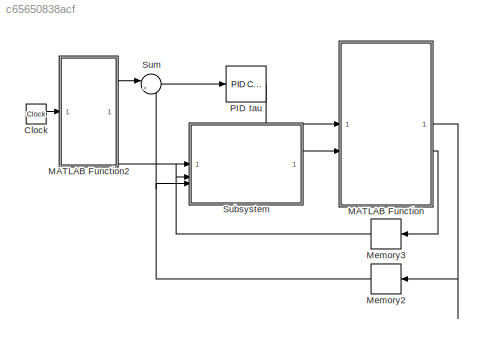
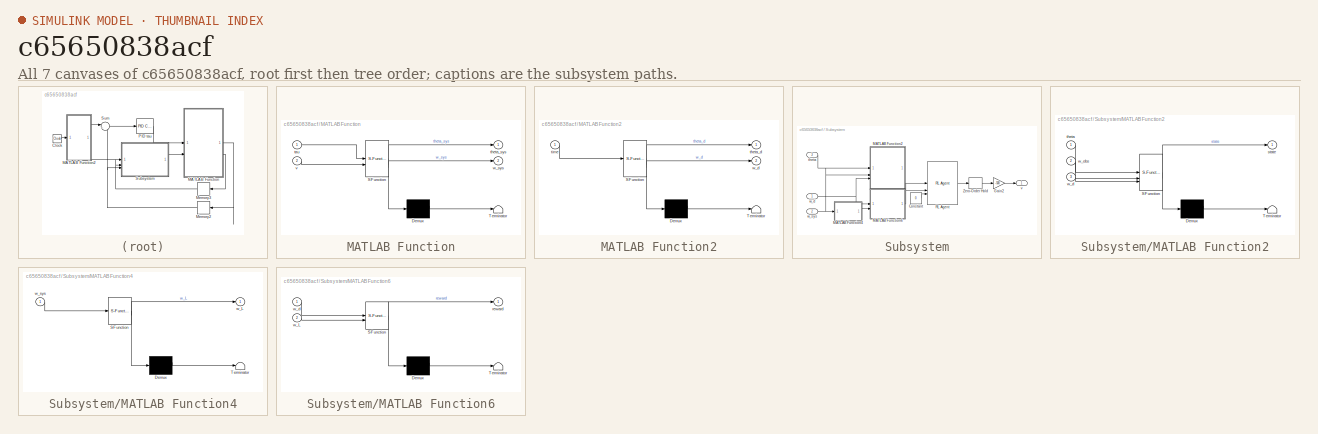
[diagram: thumbnail index - all 7 canvases of the model, root first then tree order]
MODEL slx_c65650838acf
KIND model
CONFIG AbsTol = auto
CONFIG EnableMultiTasking = off
CONFIG FixedStep = 5e-5
CONFIG MaxStep = auto
CONFIG MinStep = auto
CONFIG RelTol = 1e-3
CONFIG SampleTimeConstraint = Unconstrained
CONFIG SolverName = FixedStepAuto
CONFIG StartTime = 0.0
CONFIG StopTime = 10.0
BLOCK [Clock] Clock
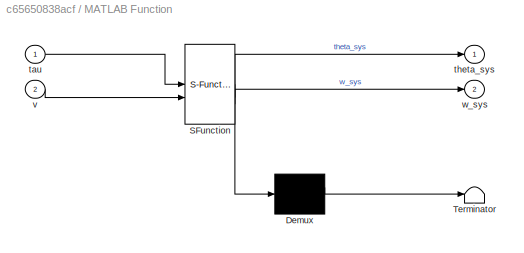
BLOCK [SubSystem] MATLAB Function
  ErrorFcn = Stateflow.Translate.translate
  PermitHierarchicalResolution = ExplicitOnly
  SFBlockType = MATLAB Function
  TreatAsAtomicUnit = on
BLOCK [Demux] MATLAB Function/ Demux 
  Outputs = 1
BLOCK [S-Function] MATLAB Function/ SFunction 
  EnableBusSupport = on
  FunctionName = sf_sfun
  PortCounts = [2 3]
  SFcnIsStateOwnerBlock = off
  SFunctionDeploymentMode = off
  Tag = Stateflow S-Function 2
BLOCK [Terminator] MATLAB Function/ Terminator 
BLOCK [Inport] MATLAB Function/tau
BLOCK [Outport] MATLAB Function/theta_sys
  VectorParamsAs1DForOutWhenUnconnected = off
BLOCK [Inport] MATLAB Function/v
  Port = 2
BLOCK [Outport] MATLAB Function/w_sys
  Port = 2
  VectorParamsAs1DForOutWhenUnconnected = off
BLOCK [SubSystem] MATLAB Function2
  ErrorFcn = Stateflow.Translate.translate
  PermitHierarchicalResolution = ExplicitOnly
  SFBlockType = MATLAB Function
  TreatAsAtomicUnit = on
BLOCK [Demux] MATLAB Function2/ Demux 
  Outputs = 1
BLOCK [S-Function] MATLAB Function2/ SFunction 
  EnableBusSupport = on
  FunctionName = sf_sfun
  PortCounts = [1 3]
  SFcnIsStateOwnerBlock = off
  SFunctionDeploymentMode = off
  Tag = Stateflow S-Function 3
BLOCK [Terminator] MATLAB Function2/ Terminator 
BLOCK [Outport] MATLAB Function2/theta_d
  VectorParamsAs1DForOutWhenUnconnected = off
BLOCK [Inport] MATLAB Function2/time
BLOCK [Outport] MATLAB Function2/w_d
  Port = 2
  VectorParamsAs1DForOutWhenUnconnected = off
BLOCK [Memory] Memory2
BLOCK [Memory] Memory3
BLOCK [Reference] PID tau  REF=slpidlib/PID Controller
  SourceBlock = slpidlib/PID Controller
  SourceType = PID 1dof
BLOCK [SubSystem] Subsystem
BLOCK [Constant] Subsystem/Constant
  Value = 0
BLOCK [Gain] Subsystem/Gain2
  Gain = -500
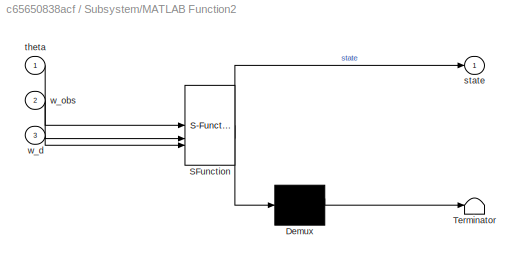
BLOCK [SubSystem] Subsystem/MATLAB Function2
  ErrorFcn = Stateflow.Translate.translate
  PermitHierarchicalResolution = ExplicitOnly
  SFBlockType = MATLAB Function
  TreatAsAtomicUnit = on
BLOCK [Demux] Subsystem/MATLAB Function2/ Demux 
  Outputs = 1
BLOCK [S-Function] Subsystem/MATLAB Function2/ SFunction 
  EnableBusSupport = on
  FunctionName = sf_sfun
  PortCounts = [3 2]
  SFcnIsStateOwnerBlock = off
  SFunctionDeploymentMode = off
  Tag = Stateflow S-Function 9
BLOCK [Terminator] Subsystem/MATLAB Function2/ Terminator 
BLOCK [Outport] Subsystem/MATLAB Function2/state
  VectorParamsAs1DForOutWhenUnconnected = off
BLOCK [Inport] Subsystem/MATLAB Function2/theta
BLOCK [Inport] Subsystem/MATLAB Function2/w_d
  Port = 3
BLOCK [Inport] Subsystem/MATLAB Function2/w_obs
  Port = 2
BLOCK [SubSystem] Subsystem/MATLAB Function4
  ErrorFcn = Stateflow.Translate.translate
  PermitHierarchicalResolution = ExplicitOnly
  SFBlockType = MATLAB Function
  TreatAsAtomicUnit = on
BLOCK [Demux] Subsystem/MATLAB Function4/ Demux 
  Outputs = 1
BLOCK [S-Function] Subsystem/MATLAB Function4/ SFunction 
  EnableBusSupport = on
  FunctionName = sf_sfun
  PortCounts = [1 2]
  SFcnIsStateOwnerBlock = off
  SFunctionDeploymentMode = off
  Tag = Stateflow S-Function 11
BLOCK [Terminator] Subsystem/MATLAB Function4/ Terminator 
BLOCK [Outport] Subsystem/MATLAB Function4/w_L
  VectorParamsAs1DForOutWhenUnconnected = off
BLOCK [Inport] Subsystem/MATLAB Function4/w_sys
BLOCK [SubSystem] Subsystem/MATLAB Function6
  ErrorFcn = Stateflow.Translate.translate
  PermitHierarchicalResolution = ExplicitOnly
  SFBlockType = MATLAB Function
  TreatAsAtomicUnit = on
BLOCK [Demux] Subsystem/MATLAB Function6/ Demux 
  Outputs = 1
BLOCK [S-Function] Subsystem/MATLAB Function6/ SFunction 
  EnableBusSupport = on
  FunctionName = sf_sfun
  PortCounts = [2 2]
  SFcnIsStateOwnerBlock = off
  SFunctionDeploymentMode = off
  Tag = Stateflow S-Function 7
BLOCK [Terminator] Subsystem/MATLAB Function6/ Terminator 
BLOCK [Outport] Subsystem/MATLAB Function6/reward
  VectorParamsAs1DForOutWhenUnconnected = off
BLOCK [Inport] Subsystem/MATLAB Function6/w_L
  Port = 2
BLOCK [Inport] Subsystem/MATLAB Function6/w_d
BLOCK [Reference] Subsystem/RL Agent  REF=rllib/RL Agent
  SourceBlock = rllib/RL Agent
  SourceType = RL Agent
BLOCK [ZeroOrderHold] Subsystem/Zero-Order Hold
  SampleTime = 20e-3
BLOCK [Inport] Subsystem/theta
  Port = 3
BLOCK [Outport] Subsystem/v
  VectorParamsAs1DForOutWhenUnconnected = off
BLOCK [Inport] Subsystem/w_d
BLOCK [Inport] Subsystem/w_sys
  Port = 2
BLOCK [Sum] Sum
  Inputs = |+-
LINE Clock:1 -> MATLAB Function2:1
LINE MATLAB Function2:1 -> Sum:1
LINE MATLAB Function2:2 -> Subsystem:1
LINE MATLAB Function:1 -> Memory2:1
LINE MATLAB Function:2 -> Memory3:1
NET Memory2:1 -> Subsystem:3, Sum:2
LINE Memory3:1 -> Subsystem:2
LINE PID tau:1 -> MATLAB Function:1
LINE Subsystem/Constant:1 -> Subsystem/RL Agent:3
LINE Subsystem/Gain2:1 -> Subsystem/v:1
LINE Subsystem/MATLAB Function2:1 -> Subsystem/RL Agent:1
LINE Subsystem/MATLAB Function4:1 -> Subsystem/MATLAB Function6:2
LINE Subsystem/MATLAB Function6:1 -> Subsystem/RL Agent:2
LINE Subsystem/RL Agent:1 -> Subsystem/Zero-Order Hold:1
LINE Subsystem/Zero-Order Hold:1 -> Subsystem/Gain2:1
LINE Subsystem/theta:1 -> Subsystem/MATLAB Function2:1
NET Subsystem/w_d:1 -> Subsystem/MATLAB Function2:3, Subsystem/MATLAB Function6:1
NET Subsystem/w_sys:1 -> Subsystem/MATLAB Function2:2, Subsystem/MATLAB Function4:1
LINE Subsystem:1 -> MATLAB Function:2
LINE Sum:1 -> PID tau:1
note: NET lines group one-source signal fan-out (src -> all destinations, sorted); 1:1 wires keep LINE
CHART MATLAB Function states=1 transitions=1
  STATE_LABEL 'eML_blk_kernel()'
  STATE_LABEL 'SCRIPT:\nfunction [theta_sys, w_sys] = Flex_Fishtail(tau, v)\n    %***********************************************************\n    persistent angle;\n    persistent angle_pre;\n    persistent omega;\n    persistent omega_pre;\n    \n    if isempty(angle)\n        angle = (2 * rand() - 1)*5/180*pi;\n%         angle = 0;\n        angle_pre = angle;\n        omega = [ 0; 0; -0.0002; -0.0004;\n            -0.0007...<+3089ch>'
CHART MATLAB Function2 states=1 transitions=1
  STATE_LABEL 'eML_blk_kernel()'
  STATE_LABEL 'SCRIPT:\nfunction [theta_d, w_d] = CTL_target(time)\n    c1=10/180*pi;\n    c2=0.01;\n    L=0.17;\n    lamda=L*50;\n\n    if time < 8\n        f = 0.5;\n    else\n        f = 1.0;\n    end\n\n    theta_d=c1*sin(2*pi*f*time);\n    w_d=(c1*L+c2*L^2)*sin(2*pi*(f*time+L/lamda))-L*theta_d;\n%     w_d=0;\n    \nend\n'
CHART Subsystem/MATLAB Function6 states=1 transitions=1
  STATE_LABEL 'eML_blk_kernel()'
  STATE_LABEL 'SCRIPT:\nfunction reward = Get_Reward(w_d, w_L)\n\n    err = w_d - w_L;\n    ke = 5e4;\n\n    reward = -ke*err*err;\n\nend'
CHART Subsystem/MATLAB Function2 states=1 transitions=1
  STATE_LABEL 'eML_blk_kernel()'
  STATE_LABEL 'SCRIPT:\nfunction state = Get_State(theta, w_obs, w_d)\n\n    state = [theta;\n             w_obs(9);\n             w_obs(14);\n             w_obs(end);\n             w_d];\n\nend'
CHART Subsystem/MATLAB Function4 states=1 transitions=1
  STATE_LABEL 'eML_blk_kernel()'
  STATE_LABEL 'SCRIPT:\nfunction w_L = get_w_L(w_sys)\n    w_L = w_sys(end);\nend'
CHART  states=0 transitions=0
CHART  states=0 transitions=0
CHART  states=0 transitions=0
CHART  states=0 transitions=0
CHART  states=0 transitions=0
